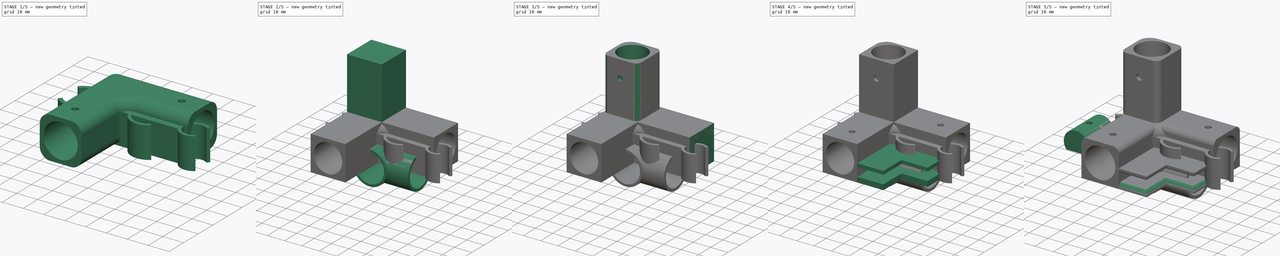
[diagram: build sequence overview — one tinted view per stage of 5, left to right]
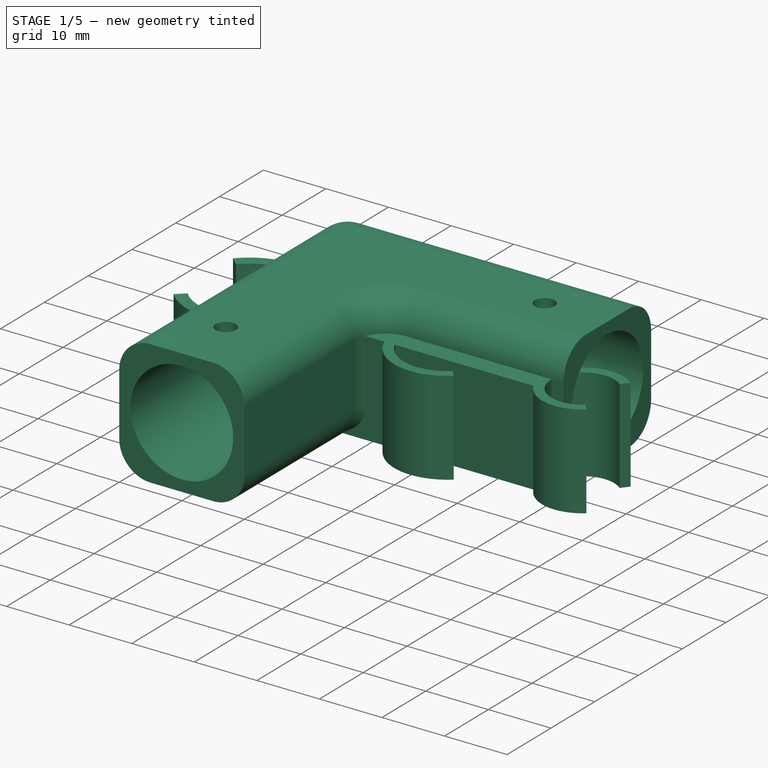
[diagram: stage 1 of 5 — iso view after this stage's code; geometry added in this stage tinted green]
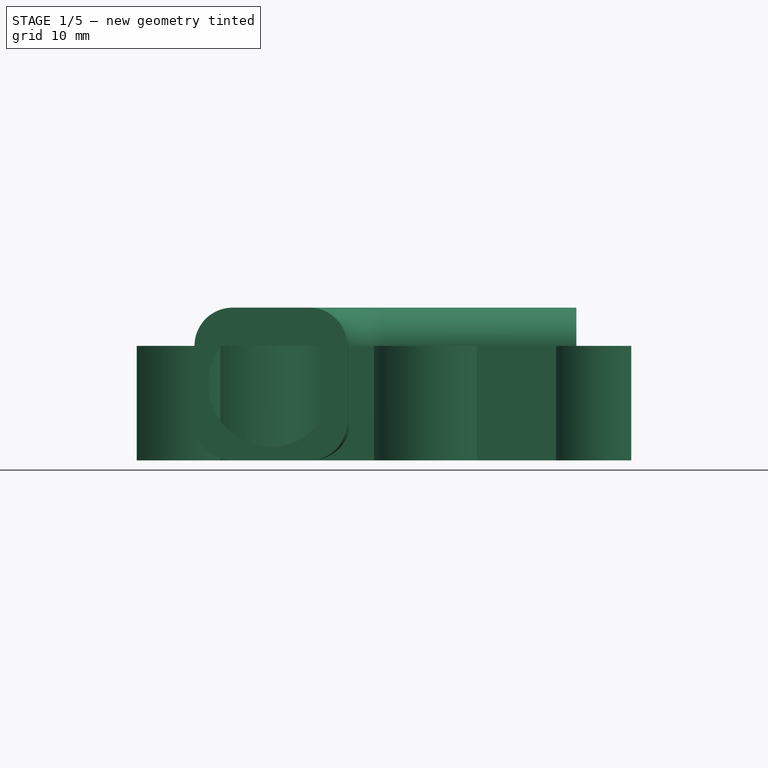
[diagram: stage 1 of 5 — front view after this stage's code; geometry added in this stage tinted green]
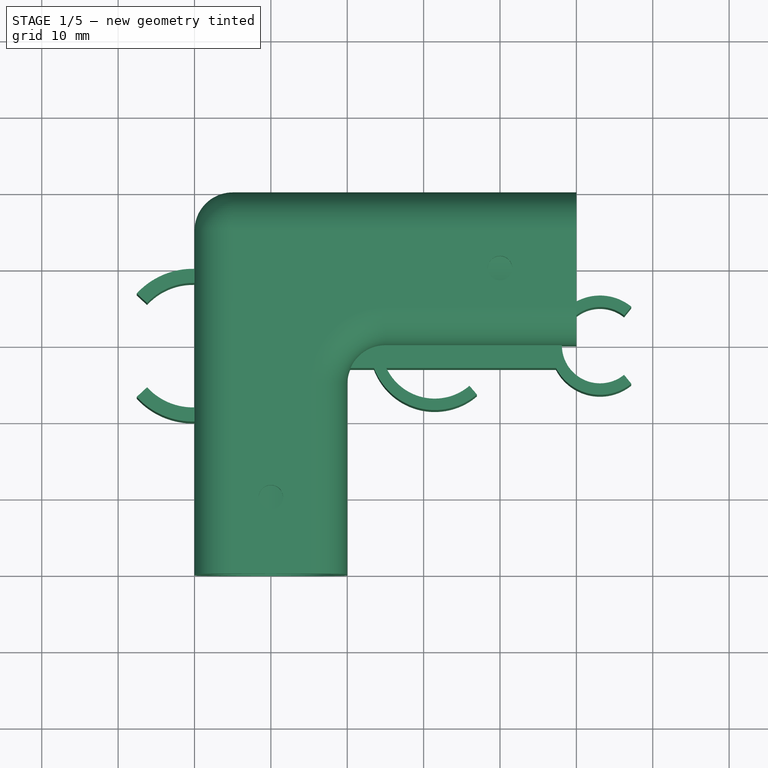
[diagram: stage 1 of 5 — top view after this stage's code; geometry added in this stage tinted green]
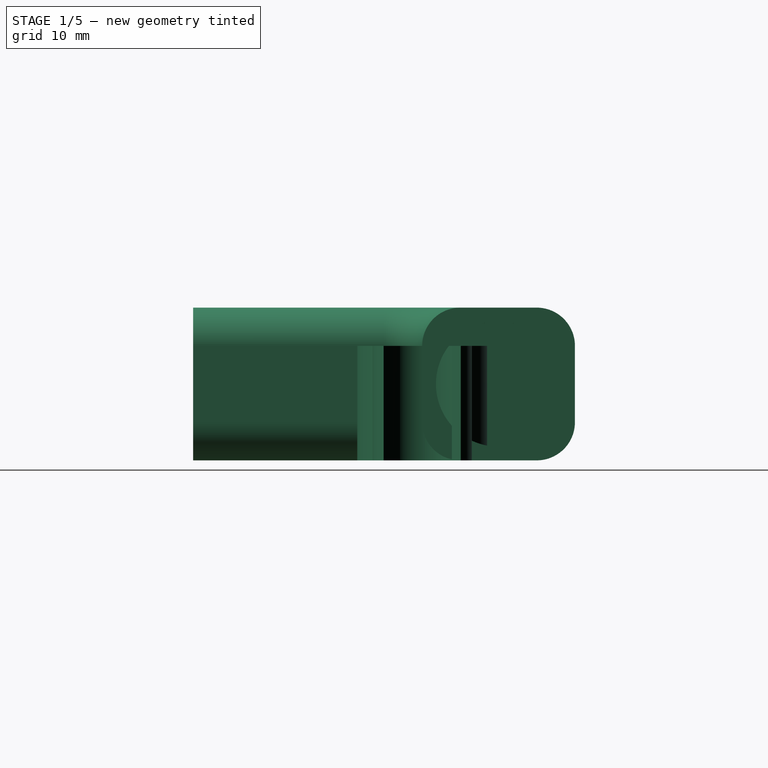
[diagram: stage 1 of 5 — right view after this stage's code; geometry added in this stage tinted green]
FCSTD DOCUMENT  (FreeCAD 0.21R33694 (Git))
Label: SprayBoxOutdoor
License: All rights reserved
LicenseURL: http://en.wikipedia.org/wiki/All_rights_reserved
objects: Sketcher::SketchObject×31, PartDesign::Pocket×18, PartDesign::Pad×12, PartDesign::Body×7, PartDesign::Fillet×7, Spreadsheet::Sheet×3
note: 112 computed .brp shape members not serialized (recipe doc carries the construction recipe); baked Part::Feature solids carry a one-line shape summary decoded from their .brp

FEATURE [PartDesign::Body] Body003  label="Körper"
  Group = -> [Sketch022,Pad007,Sketch023,Pad008,Sketch024,Pocket013,Sketch025,Pocket014]
  Origin = -> Origin003
  Tip = -> Pocket014
FEATURE [Sketcher::SketchObject] Sketch026
  FullyConstrained = true
  MapMode = 2
  sketch-geometry (6):
    g0: LineSegment StartX=-20 StartY=20 StartZ=0 EndX=-20 EndY=-30 EndZ=0
    g1: LineSegment StartX=-20 StartY=-30 StartZ=0 EndX=0 EndY=-30 EndZ=0
    g2: LineSegment StartX=0 StartY=-30 StartZ=0 EndX=0 EndY=0 EndZ=0
    g3: LineSegment StartX=0 StartY=0 StartZ=0 EndX=30 EndY=0 EndZ=0
    g4: LineSegment StartX=30 StartY=0 StartZ=0 EndX=30 EndY=20 EndZ=0
    g5: LineSegment StartX=-20 StartY=20 StartZ=0 EndX=30 EndY=20 EndZ=0
  constraints (17):
    c: Vertical(g0)
    c: Coincident(g0,g1)
    c: PointOnObject(g1,g-2)
    c: Horizontal(g1)
    c: Coincident(g1,g2)
    c: Coincident(g2,g-1)
    c: Coincident(g2,g3)
    c: Horizontal(g3)
    c: Coincident(g3,g4)
    c: Vertical(g4)
    c: DistanceY(g4,g4) = 20
    c: Coincident(g5,g0)
    c: Coincident(g5,g4)
    c: Horizontal(g5)
    c: Equal(g5,g0)
    c: DistanceX(g5,g5) = 50
    c: Equal(g1,g4)
FEATURE [PartDesign::Pad] Pad009
  Direction = (0,0,1)
  Length = 20
  Length2 = 10
  Profile = -> Sketch026
  ReferenceAxis = -> Sketch026 [N_Axis]
  Type = 0
FEATURE [Sketcher::SketchObject] Sketch027
  AttachmentOffset = pos=(0,0,30) rot=(0,0,1;0rad)
  FullyConstrained = true
  MapMode = 5
  Placement = pos=(0,-30,-6.7e-15) rot=(1,0,0;1.5708rad)
  Support = -> [XZ_Plane004]
  expr: Constraints[2] = Spreadsheet002.rohr_aussen
  sketch-geometry (1):
    g0: Circle CenterX=-10 CenterY=10 CenterZ=0 NormalX=0 NormalY=0 NormalZ=1 AngleXU=0 Radius=8.2
  constraints (3):
    c: DistanceX(g0,g-1) = 10
    c: DistanceY(g-1,g0) = 10
    c: Diameter(g0) = 16.4
FEATURE [PartDesign::Pocket] Pocket015
  BaseFeature = -> Pad009
  Direction = (0,1,2e-16)
  Length = 30
  Length2 = 5
  Profile = -> Sketch027
  ReferenceAxis = -> Sketch027 [N_Axis]
  Type = 0
FEATURE [Sketcher::SketchObject] Sketch028
  AttachmentOffset = pos=(0,0,30) rot=(0,0,1;0rad)
  FullyConstrained = true
  MapMode = 5
  Placement = pos=(30,-6.7e-15,6.7e-15) rot=(0.57735,0.57735,0.57735;2.0944rad)
  Support = -> [YZ_Plane004]
  expr: Constraints[0] = Spreadsheet002.rohr_aussen
  sketch-geometry (1):
    g0: Circle CenterX=10 CenterY=10 CenterZ=0 NormalX=0 NormalY=0 NormalZ=1 AngleXU=0 Radius=8.2
  constraints (3):
    c: Diameter(g0) = 16.4
    c: DistanceY(g-1,g0) = 10
    c: DistanceX(g-1,g0) = 10
FEATURE [PartDesign::Pocket] Pocket016
  BaseFeature = -> Pocket015
  Direction = (-1,2e-16,-3e-16)
  Length = 30
  Length2 = 5
  Profile = -> Sketch028
  ReferenceAxis = -> Sketch028 [N_Axis]
  Type = 0
FEATURE [Spreadsheet::Sheet] Spreadsheet002
  cells = A1='RohrAußen; B1(rohr_aussen)=16.4; A2='Bohrung; B2(bohrung)=3.2; A3='RohrInnen; B3(rohr_innen)=12.8; A4='Mutter; B4(mutter)=5.5
FEATURE [Sketcher::SketchObject] Sketch031
  AttachmentOffset = pos=(0,0,20) rot=(0,0,1;0rad)
  FullyConstrained = true
  MapMode = 5
  Placement = pos=(0,0,20) rot=(0,0,1;0rad)
  Support = -> [XY_Plane004]
  expr: Constraints[0] = Spreadsheet002.bohrung
  expr: Constraints[1] = Spreadsheet002.bohrung
  sketch-geometry (2):
    g0: Circle CenterX=20 CenterY=10 CenterZ=0 NormalX=0 NormalY=0 NormalZ=1 AngleXU=0 Radius=1.6
    g1: Circle CenterX=-10 CenterY=-20 CenterZ=0 NormalX=0 NormalY=0 NormalZ=1 AngleXU=0 Radius=1.6
  constraints (6):
    c: Diameter(g1) = 3.2
    c: Diameter(g0) = 3.2
    c: DistanceY(g1,g-1) = 20
    c: DistanceX(g1,g-1) = 10
    c: DistanceY(g-1,g0) = 10
    c: DistanceX(g-1,g0) = 20
FEATURE [PartDesign::Pocket] Pocket018
  BaseFeature = -> Pocket016
  Direction = (0,0,-1)
  Length = 5
  Length2 = 5
  Profile = -> Sketch031
  ReferenceAxis = -> Sketch031 [N_Axis]
  Type = 0
FEATURE [PartDesign::Fillet] Fillet006
  Base = -> Pocket018 [Edge17,Edge16,Edge4,Edge7,Edge6,Edge1,Edge3,Edge12,Edge13,Edge22]
  BaseFeature = -> Pocket018
  Radius = 5
  SupportTransform = false
  UseAllEdges = false
FEATURE [PartDesign::Body] Body004  label="Corner top001"
  Group = -> [Sketch026,Pad009,Sketch027,Pocket015,Sketch028,Pocket016,Sketch031,Pocket018,Fillet006]
  Origin = -> Origin004
  Tip = -> Fillet006
FEATURE [Sketcher::SketchObject] Sketch032
  FullyConstrained = true
  MapMode = 5
  Support = -> [XY_Plane005]
  sketch-geometry (13):
    g0: ArcOfCircle CenterX=11.453 CenterY=-1e-16 CenterZ=0 NormalX=0 NormalY=0 NormalZ=1 AngleXU=0 Radius=7 StartAngle=0.863773 EndAngle=5.41941
    g1: LineSegment StartX=16 StartY=5.32209 StartZ=0 EndX=16.9744 EndY=6.46254 EndZ=0
    g2: ArcOfCircle CenterX=11.453 CenterY=-1e-16 CenterZ=0 NormalX=0 NormalY=0 NormalZ=1 AngleXU=0 Radius=8.5 StartAngle=0.863773 EndAngle=2.78088
    g3: ArcOfCircle CenterX=11.453 CenterY=-1e-16 CenterZ=0 NormalX=0 NormalY=0 NormalZ=1 AngleXU=0 Radius=8.5 StartAngle=3.50231 EndAngle=5.41941
    g4: LineSegment StartX=16 StartY=-5.32209 StartZ=0 EndX=16.9744 EndY=-6.46254 EndZ=0
    g5: LineSegment StartX=3.5 StartY=-3 StartZ=0 EndX=-3.5 EndY=-3 EndZ=0
    g6: LineSegment StartX=3.5 StartY=3 StartZ=0 EndX=-3.5 EndY=3 EndZ=0
    g7: GeomPoint X=-13.0394 Y=-7.9e-15 Z=0
    g8: ArcOfCircle CenterX=-13.0394 CenterY=-7.9e-15 CenterZ=0 NormalX=0 NormalY=0 NormalZ=1 AngleXU=0 Radius=10 StartAngle=0.304693 EndAngle=2.28862
    g9: ArcOfCircle CenterX=-13.0394 CenterY=-7.9e-15 CenterZ=0 NormalX=0 NormalY=0 NormalZ=1 AngleXU=0 Radius=10 StartAngle=3.99457 EndAngle=5.97849
    g10: LineSegment StartX=-19.6168 StartY=7.53242 StartZ=0 EndX=-18.4 EndY=6.13892 EndZ=0
    g11: LineSegment StartX=-19.6168 StartY=-7.53242 StartZ=0 EndX=-18.4 EndY=-6.13892 EndZ=0
    g12: ArcOfCircle CenterX=-13.0394 CenterY=-7.9e-15 CenterZ=0 NormalX=0 NormalY=0 NormalZ=1 AngleXU=0 Radius=8.15 StartAngle=3.99457 EndAngle=8.5718
  constraints (35):
    c: Diameter(g0) = 14
    c: Coincident(g1,g0)
    c: Coincident(g2,g0)
    c: Coincident(g2,g1)
    c: Diameter(g2) = 17
    c: Perpendicular(g0,g1)
    c: DistanceX(g-1,g0) = 16
    c: Symmetric(g4,g0,g-1)
    c: Coincident(g3,g0)
    c: Coincident(g4,g3)
    c: Symmetric(g1,g3,g-1)
    c: Coincident(g5,g3)
    c: Horizontal(g5)
    c: Coincident(g6,g2)
    c: Horizontal(g6)
    c: Coincident(g4,g0)
    c: DistanceX(g6,g6) = 7
    c: Equal(g5,g6)
    c: Coincident(g8,g7)
    c: Coincident(g8,g6)
    c: Coincident(g9,g8)
    c: Coincident(g9,g5)
    c: Symmetric(g8,g9,g-1)
    c: Coincident(g10,g8)
    c: Coincident(g11,g9)
    c: Coincident(g12,g8)
    c: Coincident(g12,g10)
    c: Coincident(g12,g11)
    c: Symmetric(g10,g11,g-1)
    c: Perpendicular(g8,g10)
    c: DistanceY(g-1,g2) = 3
    c: Diameter(g12) = 16.3
    c: Diameter(g8) = 20
    c: DistanceX(g-1,g3) = 3.5
    c: DistanceX(g10,g-1) = 18.4
FEATURE [PartDesign::Pad] Pad010
  Direction = (0,0,1)
  Length = 15
  Length2 = 10
  Profile = -> Sketch032
  ReferenceAxis = -> Sketch032 [N_Axis]
  Type = 0
FEATURE [PartDesign::Body] Body005  label="Klammer1-Wäscheständer"
  Group = -> [Sketch032,Pad010]
  Origin = -> Origin005
  Tip = -> Pad010
FEATURE [Sketcher::SketchObject] Sketch033
  FullyConstrained = true
  MapMode = 5
  Support = -> [XY_Plane006]
  sketch-geometry (13):
    g0: ArcOfCircle CenterX=33.0963 CenterY=-1e-16 CenterZ=0 NormalX=0 NormalY=0 NormalZ=1 AngleXU=0 Radius=5 StartAngle=0.889243 EndAngle=5.39394
    g1: LineSegment StartX=36.2463 StartY=3.88298 StartZ=0 EndX=37.1913 EndY=5.04787 EndZ=0
    g2: ArcOfCircle CenterX=33.0963 CenterY=-1e-16 CenterZ=0 NormalX=0 NormalY=0 NormalZ=1 AngleXU=0 Radius=6.5 StartAngle=0.889243 EndAngle=2.66186
    g3: ArcOfCircle CenterX=33.0963 CenterY=-1e-16 CenterZ=0 NormalX=0 NormalY=0 NormalZ=1 AngleXU=0 Radius=6.5 StartAngle=3.62132 EndAngle=5.39394
    g4: LineSegment StartX=36.2463 StartY=-3.88298 StartZ=0 EndX=37.1913 EndY=-5.04787 EndZ=0
    g5: LineSegment StartX=27.33 StartY=-3 StartZ=0 EndX=-10.67 EndY=-3 EndZ=0
    g6: LineSegment StartX=27.33 StartY=3 StartZ=0 EndX=-10.67 EndY=3 EndZ=0
    g7: GeomPoint X=-20.2094 Y=-6e-16 Z=0
    g8: ArcOfCircle CenterX=-20.2094 CenterY=-6e-16 CenterZ=0 NormalX=0 NormalY=0 NormalZ=1 AngleXU=0 Radius=10 StartAngle=0.304693 EndAngle=2.39823
    g9: ArcOfCircle CenterX=-20.2094 CenterY=-6e-16 CenterZ=0 NormalX=0 NormalY=0 NormalZ=1 AngleXU=0 Radius=10 StartAngle=3.88496 EndAngle=5.97849
    g10: LineSegment StartX=-27.5714 StartY=6.76768 StartZ=0 EndX=-26.2094 EndY=5.51566 EndZ=0
    g11: LineSegment StartX=-27.5714 StartY=-6.76768 StartZ=0 EndX=-26.2094 EndY=-5.51566 EndZ=0
    g12: ArcOfCircle CenterX=-20.2094 CenterY=-6e-16 CenterZ=0 NormalX=0 NormalY=0 NormalZ=1 AngleXU=0 Radius=8.15 StartAngle=3.88496 EndAngle=8.68141
  constraints (35):
    c: Diameter(g0) = 10
    c: Coincident(g1,g0)
    c: Coincident(g2,g0)
    c: Coincident(g2,g1)
    c: Diameter(g2) = 13
    c: Perpendicular(g0,g1)
    c: Symmetric(g4,g0,g-1)
    c: Coincident(g3,g0)
    c: Coincident(g4,g3)
    c: Symmetric(g1,g3,g-1)
    c: Coincident(g5,g3)
    c: Horizontal(g5)
    c: Coincident(g6,g2)
    c: Horizontal(g6)
    c: Coincident(g4,g0)
    c: DistanceX(g6,g6) = 38
    c: Coincident(g8,g7)
    c: Coincident(g8,g6)
    c: Coincident(g9,g8)
    c: Coincident(g9,g5)
    c: Symmetric(g8,g9,g-1)
    c: Coincident(g10,g8)
    c: Coincident(g11,g9)
    c: Coincident(g12,g8)
    c: Coincident(g12,g10)
    c: Coincident(g12,g11)
    c: Symmetric(g10,g11,g-1)
    c: Perpendicular(g8,g10)
    c: DistanceY(g-1,g2) = 3
    c: Diameter(g12) = 16.3
    c: Diameter(g8) = 20
    c: DistanceX(g10,g8) = 6
    c: DistanceX(g-1,g2) = 27.33
    c: DistanceX(g0,g0) = 3.15
    c: DistanceY(g5,g6) = 6
FEATURE [PartDesign::Pad] Pad011
  Direction = (0,0,1)
  Length = 15
  Length2 = 10
  Profile = -> Sketch033
  ReferenceAxis = -> Sketch033 [N_Axis]
  Type = 0
FEATURE [PartDesign::Body] Body006  label="Klammer2-Wäscheständer"
  Group = -> [Sketch033,Pad011]
  Origin = -> Origin006
  Tip = -> Pad011
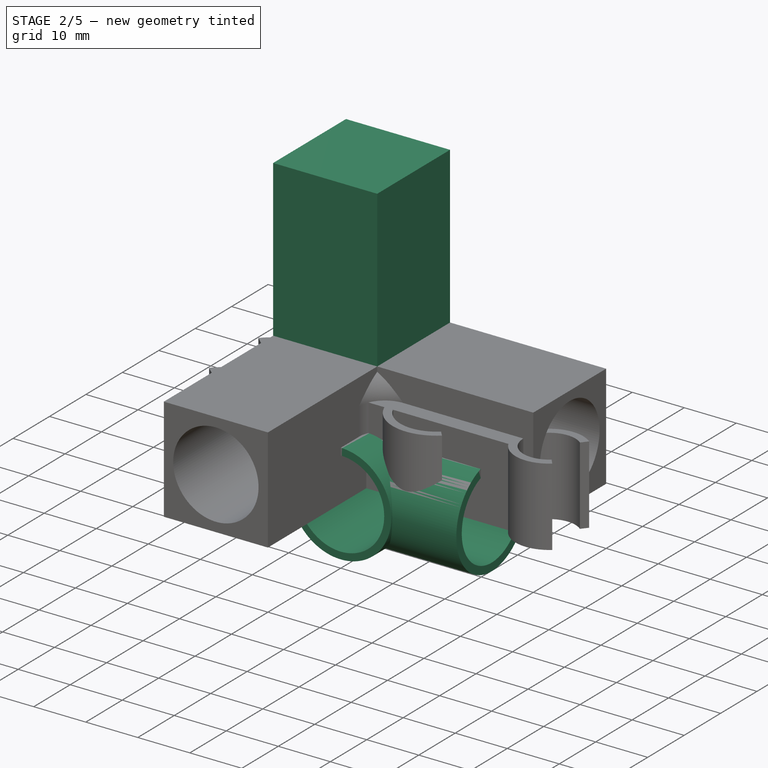
[diagram: stage 2 of 5 — iso view after this stage's code; geometry added in this stage tinted green]
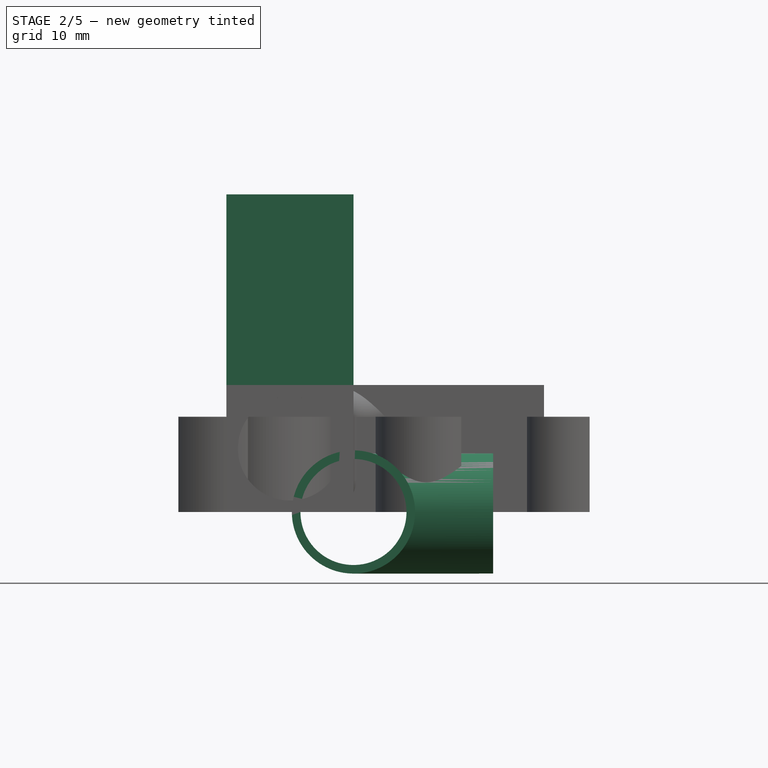
[diagram: stage 2 of 5 — front view after this stage's code; geometry added in this stage tinted green]
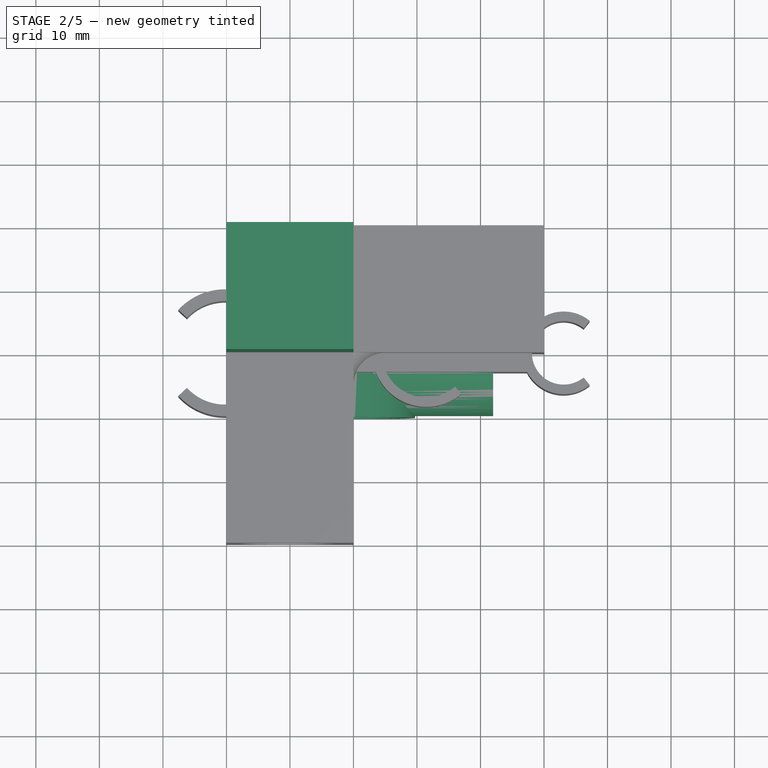
[diagram: stage 2 of 5 — top view after this stage's code; geometry added in this stage tinted green]
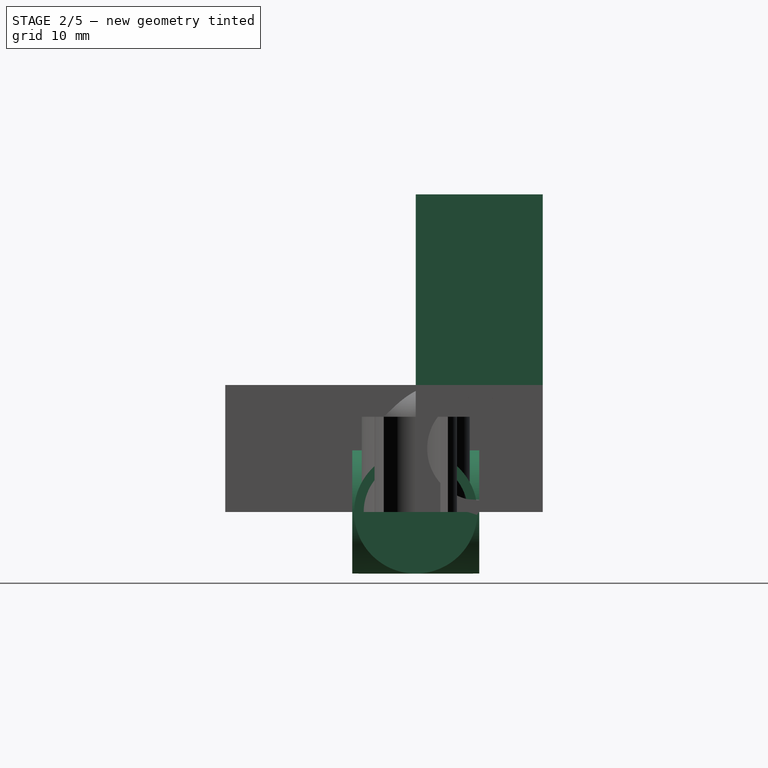
[diagram: stage 2 of 5 — right view after this stage's code; geometry added in this stage tinted green]
FEATURE [PartDesign::Body] Body  label="Corner bottom"
  Group = -> [Sketch,Pad,Sketch001,Pocket,Sketch002,Pocket001,Sketch003,Pad001,Sketch004,Pocket002,Sketch005,Pad002,Sketch006,Pocket003,Sketch007,Pocket004,Sketch008,Pad003,Fillet,Fillet001,Fillet002,Fillet003]
  Origin = -> Origin001
  Tip = -> Fillet003
FEATURE [Sketcher::SketchObject] Sketch014
  FullyConstrained = true
  MapMode = 2
  sketch-geometry (6):
    g0: LineSegment StartX=-20 StartY=20 StartZ=0 EndX=-20 EndY=-30 EndZ=0
    g1: LineSegment StartX=-20 StartY=-30 StartZ=0 EndX=0 EndY=-30 EndZ=0
    g2: LineSegment StartX=0 StartY=-30 StartZ=0 EndX=0 EndY=0 EndZ=0
    g3: LineSegment StartX=0 StartY=0 StartZ=0 EndX=30 EndY=0 EndZ=0
    g4: LineSegment StartX=30 StartY=0 StartZ=0 EndX=30 EndY=20 EndZ=0
    g5: LineSegment StartX=-20 StartY=20 StartZ=0 EndX=30 EndY=20 EndZ=0
  constraints (17):
    c: Vertical(g0)
    c: Coincident(g0,g1)
    c: PointOnObject(g1,g-2)
    c: Horizontal(g1)
    c: Coincident(g1,g2)
    c: Coincident(g2,g-1)
    c: Coincident(g2,g3)
    c: Horizontal(g3)
    c: Coincident(g3,g4)
    c: Vertical(g4)
    c: DistanceY(g4,g4) = 20
    c: Coincident(g5,g0)
    c: Coincident(g5,g4)
    c: Horizontal(g5)
    c: Equal(g5,g0)
    c: DistanceX(g5,g5) = 50
    c: Equal(g1,g4)
FEATURE [PartDesign::Pad] Pad005
  Direction = (0,0,1)
  Length = 20
  Length2 = 10
  Profile = -> Sketch014
  ReferenceAxis = -> Sketch014 [N_Axis]
  Type = 0
FEATURE [Sketcher::SketchObject] Sketch015
  AttachmentOffset = pos=(0,0,30) rot=(0,0,1;0rad)
  FullyConstrained = true
  MapMode = 5
  Placement = pos=(0,-30,-6.7e-15) rot=(1,0,0;1.5708rad)
  Support = -> [XZ_Plane002]
  expr: Constraints[2] = Spreadsheet001.rohr_aussen
  sketch-geometry (1):
    g0: Circle CenterX=-10 CenterY=10 CenterZ=0 NormalX=0 NormalY=0 NormalZ=1 AngleXU=0 Radius=8.2
  constraints (3):
    c: DistanceX(g0,g-1) = 10
    c: DistanceY(g-1,g0) = 10
    c: Diameter(g0) = 16.4
FEATURE [PartDesign::Pocket] Pocket008
  BaseFeature = -> Pad005
  Direction = (0,1,2e-16)
  Length = 30
  Length2 = 5
  Profile = -> Sketch015
  ReferenceAxis = -> Sketch015 [N_Axis]
  Type = 0
FEATURE [Sketcher::SketchObject] Sketch016
  AttachmentOffset = pos=(0,0,30) rot=(0,0,1;0rad)
  FullyConstrained = true
  MapMode = 5
  Placement = pos=(30,-6.7e-15,6.7e-15) rot=(0.57735,0.57735,0.57735;2.0944rad)
  Support = -> [YZ_Plane002]
  expr: Constraints[0] = Spreadsheet001.rohr_aussen
  sketch-geometry (1):
    g0: Circle CenterX=10 CenterY=10 CenterZ=0 NormalX=0 NormalY=0 NormalZ=1 AngleXU=0 Radius=8.2
  constraints (3):
    c: Diameter(g0) = 16.4
    c: DistanceY(g-1,g0) = 10
    c: DistanceX(g-1,g0) = 10
FEATURE [PartDesign::Pocket] Pocket009
  BaseFeature = -> Pocket008
  Direction = (-1,2e-16,-3e-16)
  Length = 30
  Length2 = 5
  Profile = -> Sketch016
  ReferenceAxis = -> Sketch016 [N_Axis]
  Type = 0
FEATURE [Sketcher::SketchObject] Sketch017
  AttachmentOffset = pos=(0,0,20) rot=(0,0,1;0rad)
  FullyConstrained = true
  MapMode = 5
  Placement = pos=(0,0,20) rot=(0,0,1;0rad)
  Support = -> [XY_Plane002]
  sketch-geometry (4):
    g0: LineSegment StartX=-20 StartY=20 StartZ=0 EndX=0 EndY=20 EndZ=0
    g1: LineSegment StartX=0 StartY=20 StartZ=0 EndX=0 EndY=0 EndZ=0
    g2: LineSegment StartX=0 StartY=0 StartZ=0 EndX=-20 EndY=0 EndZ=0
    g3: LineSegment StartX=-20 StartY=0 StartZ=0 EndX=-20 EndY=20 EndZ=0
  constraints (11):
    c: Coincident(g0,g1)
    c: Coincident(g1,g2)
    c: Coincident(g2,g3)
    c: Coincident(g3,g0)
    c: Horizontal(g0)
    c: Horizontal(g2)
    c: Vertical(g1)
    c: Vertical(g3)
    c: Coincident(g1,g-1)
    c: DistanceX(g0,g0) = 20
    c: DistanceY(g3,g3) = 20
FEATURE [PartDesign::Pad] Pad006
  BaseFeature = -> Pocket009
  Direction = (0,0,1)
  Length = 30
  Length2 = 10
  Profile = -> Sketch017
  ReferenceAxis = -> Sketch017 [N_Axis]
  Type = 0
FEATURE [PartDesign::Body] Body002  label="Corner top"
  Group = -> [Sketch014,Pad005,Sketch015,Pocket008,Sketch016,Pocket009,Sketch017,Pad006,Sketch018,Pocket010,Sketch020,Pocket011,Sketch021,Pocket012,Fillet004,Fillet005]
  Origin = -> Origin002
  Tip = -> Fillet005
FEATURE [Sketcher::SketchObject] Sketch022
  FullyConstrained = true
  MapMode = 5
  Placement = pos=(0,0,0) rot=(1,0,0;1.5708rad)
  Support = -> [XZ_Plane003]
  expr: Constraints[1] = Spreadsheet.rohr_aussen + 3
  sketch-geometry (1):
    g0: Circle CenterX=0 CenterY=0 CenterZ=0 NormalX=0 NormalY=0 NormalZ=1 AngleXU=0 Radius=9.7
  constraints (2):
    c: Coincident(g0,g-1)
    c: Diameter(g0) = 19.4
FEATURE [PartDesign::Pad] Pad007
  Direction = (0,-1,2e-16)
  Length = 20
  Length2 = 10
  Midplane = true
  Placement = pos=(0,0,0) rot=(1,0,0;1.5708rad)
  Profile = -> Sketch022
  ReferenceAxis = -> Sketch022 [N_Axis]
  Type = 0
FEATURE [Sketcher::SketchObject] Sketch023
  FullyConstrained = true
  MapMode = 5
  Placement = pos=(0,0,0) rot=(0.57735,0.57735,0.57735;2.0944rad)
  Support = -> [YZ_Plane003]
  expr: Constraints[1] = Spreadsheet.rohr_aussen + 3
  sketch-geometry (1):
    g0: Circle CenterX=0 CenterY=0 CenterZ=0 NormalX=0 NormalY=0 NormalZ=1 AngleXU=0 Radius=9.7
  constraints (2):
    c: Coincident(g0,g-1)
    c: Diameter(g0) = 19.4
FEATURE [PartDesign::Pad] Pad008
  BaseFeature = -> Pad007
  Direction = (1,-2e-16,3e-16)
  Length = 22
  Length2 = 10
  Placement = pos=(0,0,0) rot=(1,0,0;1.5708rad)
  Profile = -> Sketch023
  ReferenceAxis = -> Sketch023 [N_Axis]
  Type = 0
FEATURE [Sketcher::SketchObject] Sketch024
  AttachmentOffset = pos=(0,0,10) rot=(0,0,1;0rad)
  FullyConstrained = true
  MapMode = 5
  Placement = pos=(0,-10,-2.2e-15) rot=(1,0,0;1.5708rad)
  Support = -> [XZ_Plane003]
  expr: Constraints[1] = Spreadsheet.rohr_aussen + 0.3
  sketch-geometry (1):
    g0: Circle CenterX=0 CenterY=0 CenterZ=0 NormalX=0 NormalY=0 NormalZ=1 AngleXU=0 Radius=8.35
  constraints (2):
    c: Coincident(g0,g-1)
    c: Diameter(g0) = 16.7
FEATURE [PartDesign::Pocket] Pocket013
  BaseFeature = -> Pad008
  Direction = (0,1,-2e-16)
  Length = 23
  Length2 = 5
  Placement = pos=(0,0,0) rot=(1,0,0;1.5708rad)
  Profile = -> Sketch024
  ReferenceAxis = -> Sketch024 [N_Axis]
  Type = 0
FEATURE [Sketcher::SketchObject] Sketch025
  AttachmentOffset = pos=(0,0,22) rot=(0,0,1;0rad)
  FullyConstrained = true
  MapMode = 5
  Placement = pos=(22,-4.9e-15,4.9e-15) rot=(0.57735,0.57735,0.57735;2.0944rad)
  Support = -> [YZ_Plane003]
  expr: Constraints[1] = Spreadsheet.rohr_aussen
  sketch-geometry (1):
    g0: Circle CenterX=0 CenterY=0 CenterZ=0 NormalX=0 NormalY=0 NormalZ=1 AngleXU=0 Radius=8.2
  constraints (2):
    c: Coincident(g0,g-1)
    c: Diameter(g0) = 16.4
FEATURE [PartDesign::Pocket] Pocket014
  BaseFeature = -> Pocket013
  Direction = (-1,2e-16,-3e-16)
  Length = 12
  Length2 = 5
  Placement = pos=(0,0,0) rot=(1,0,0;1.5708rad)
  Profile = -> Sketch025
  ReferenceAxis = -> Sketch025 [N_Axis]
  Type = 0
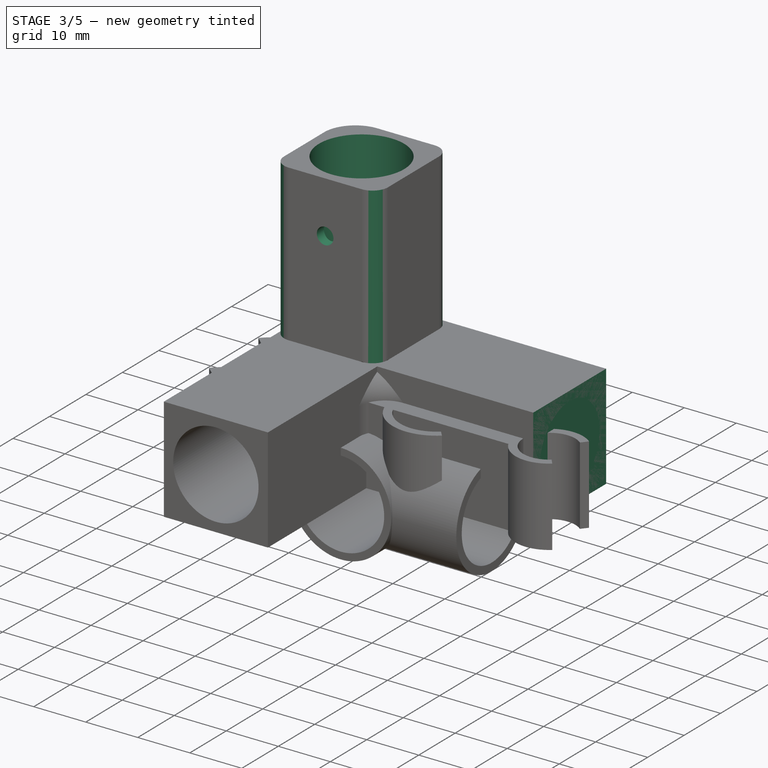
[diagram: stage 3 of 5 — iso view after this stage's code; geometry added in this stage tinted green]
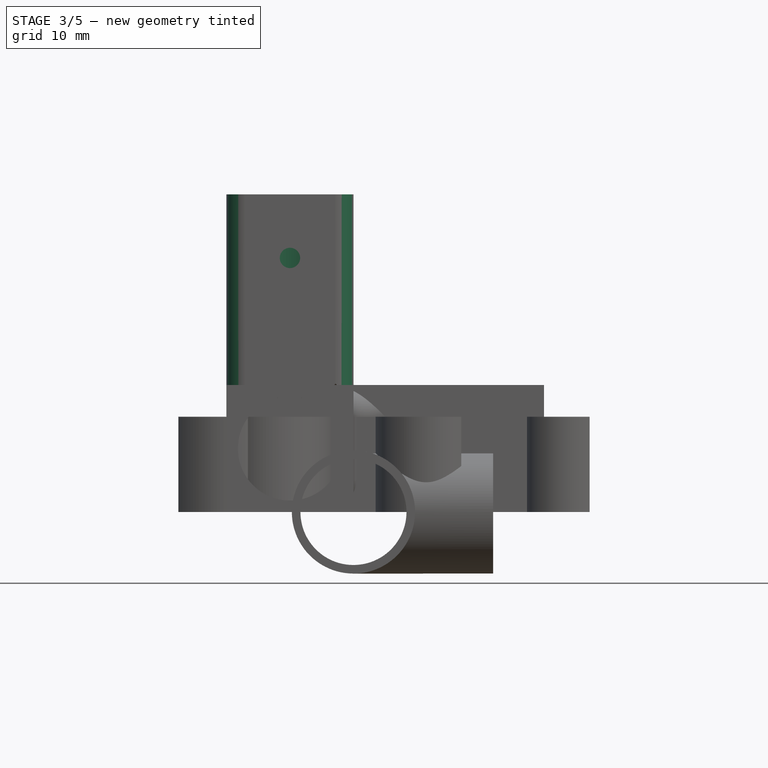
[diagram: stage 3 of 5 — front view after this stage's code; geometry added in this stage tinted green]
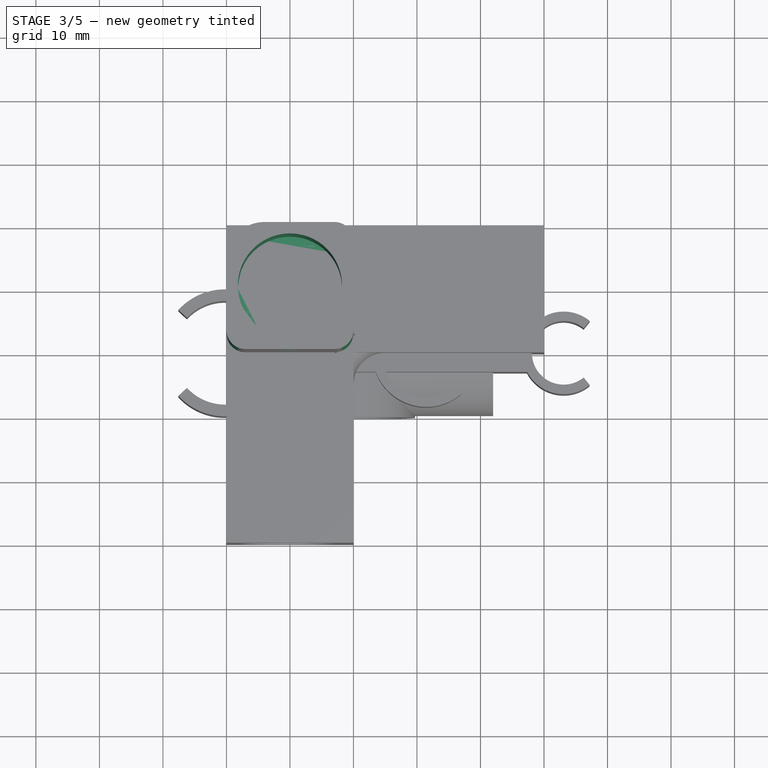
[diagram: stage 3 of 5 — top view after this stage's code; geometry added in this stage tinted green]
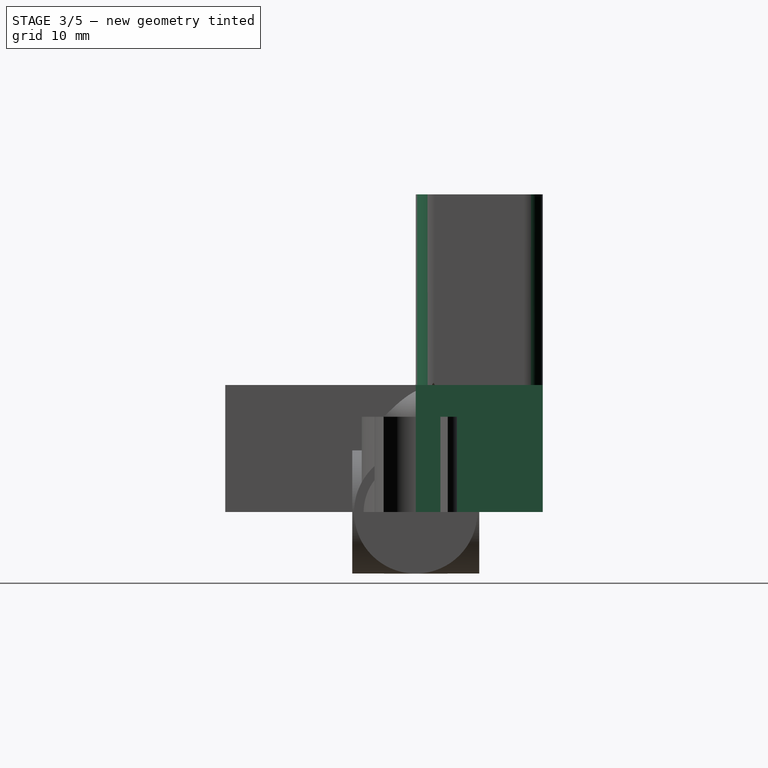
[diagram: stage 3 of 5 — right view after this stage's code; geometry added in this stage tinted green]
FEATURE [Sketcher::SketchObject] Sketch
  FullyConstrained = true
  MapMode = 2
  sketch-geometry (6):
    g0: LineSegment StartX=-20 StartY=20 StartZ=0 EndX=-20 EndY=-30 EndZ=0
    g1: LineSegment StartX=-20 StartY=-30 StartZ=0 EndX=0 EndY=-30 EndZ=0
    g2: LineSegment StartX=0 StartY=-30 StartZ=0 EndX=0 EndY=0 EndZ=0
    g3: LineSegment StartX=0 StartY=0 StartZ=0 EndX=30 EndY=0 EndZ=0
    g4: LineSegment StartX=30 StartY=0 StartZ=0 EndX=30 EndY=20 EndZ=0
    g5: LineSegment StartX=-20 StartY=20 StartZ=0 EndX=30 EndY=20 EndZ=0
  constraints (17):
    c: Vertical(g0)
    c: Coincident(g0,g1)
    c: PointOnObject(g1,g-2)
    c: Horizontal(g1)
    c: Coincident(g1,g2)
    c: Coincident(g2,g-1)
    c: Coincident(g2,g3)
    c: Horizontal(g3)
    c: Coincident(g3,g4)
    c: Vertical(g4)
    c: DistanceY(g4,g4) = 20
    c: Coincident(g5,g0)
    c: Coincident(g5,g4)
    c: Horizontal(g5)
    c: Equal(g5,g0)
    c: DistanceX(g5,g5) = 50
    c: Equal(g1,g4)
FEATURE [PartDesign::Pad] Pad
  Direction = (0,0,1)
  Length = 20
  Length2 = 10
  Profile = -> Sketch
  ReferenceAxis = -> Sketch [N_Axis]
  Type = 0
FEATURE [Sketcher::SketchObject] Sketch001
  AttachmentOffset = pos=(0,0,30) rot=(0,0,1;0rad)
  FullyConstrained = true
  MapMode = 5
  Placement = pos=(0,-30,-6.7e-15) rot=(1,0,0;1.5708rad)
  Support = -> [XZ_Plane001]
  expr: Constraints[2] = Spreadsheet.rohr_aussen
  sketch-geometry (1):
    g0: Circle CenterX=-10 CenterY=10 CenterZ=0 NormalX=0 NormalY=0 NormalZ=1 AngleXU=0 Radius=8.2
  constraints (3):
    c: DistanceX(g0,g-1) = 10
    c: DistanceY(g-1,g0) = 10
    c: Diameter(g0) = 16.4
FEATURE [PartDesign::Pocket] Pocket
  BaseFeature = -> Pad
  Direction = (0,1,2e-16)
  Length = 30
  Length2 = 5
  Profile = -> Sketch001
  ReferenceAxis = -> Sketch001 [N_Axis]
  Type = 0
FEATURE [Sketcher::SketchObject] Sketch018
  AttachmentOffset = pos=(0,0,50) rot=(0,0,1;0rad)
  FullyConstrained = true
  MapMode = 5
  Placement = pos=(0,0,50) rot=(0,0,1;0rad)
  Support = -> [XY_Plane002]
  expr: Constraints[0] = Spreadsheet001.rohr_aussen
  sketch-geometry (1):
    g0: Circle CenterX=-10 CenterY=10 CenterZ=0 NormalX=0 NormalY=0 NormalZ=1 AngleXU=0 Radius=8.2
  constraints (3):
    c: Diameter(g0) = 16.4
    c: DistanceX(g0,g-1) = 10
    c: DistanceY(g-1,g0) = 10
FEATURE [PartDesign::Pocket] Pocket010
  BaseFeature = -> Pad006
  Direction = (0,0,-1)
  Length = 30
  Length2 = 5
  Profile = -> Sketch018
  ReferenceAxis = -> Sketch018 [N_Axis]
  Type = 0
FEATURE [Sketcher::SketchObject] Sketch020
  AttachmentOffset = pos=(0,0,20) rot=(0,0,1;0rad)
  FullyConstrained = true
  MapMode = 5
  Placement = pos=(0,0,20) rot=(0,0,1;0rad)
  Support = -> [XY_Plane002]
  expr: Constraints[0] = Spreadsheet001.bohrung
  expr: Constraints[1] = Spreadsheet001.bohrung
  sketch-geometry (2):
    g0: Circle CenterX=20 CenterY=10 CenterZ=0 NormalX=0 NormalY=0 NormalZ=1 AngleXU=0 Radius=1.6
    g1: Circle CenterX=-10 CenterY=-20 CenterZ=0 NormalX=0 NormalY=0 NormalZ=1 AngleXU=0 Radius=1.6
  constraints (6):
    c: Diameter(g1) = 3.2
    c: Diameter(g0) = 3.2
    c: DistanceY(g1,g-1) = 20
    c: DistanceX(g1,g-1) = 10
    c: DistanceY(g-1,g0) = 10
    c: DistanceX(g-1,g0) = 20
FEATURE [PartDesign::Pocket] Pocket011
  BaseFeature = -> Pocket010
  Direction = (0,0,-1)
  Length = 5
  Length2 = 5
  Profile = -> Sketch020
  ReferenceAxis = -> Sketch020 [N_Axis]
  Type = 0
FEATURE [Sketcher::SketchObject] Sketch021
  FullyConstrained = true
  MapMode = 5
  Placement = pos=(0,0,0) rot=(1,0,0;1.5708rad)
  Support = -> [XZ_Plane002]
  expr: Constraints[0] = Spreadsheet001.bohrung
  sketch-geometry (1):
    g0: Circle CenterX=-10 CenterY=40 CenterZ=0 NormalX=0 NormalY=0 NormalZ=1 AngleXU=0 Radius=1.6
  constraints (3):
    c: Diameter(g0) = 3.2
    c: DistanceX(g0,g-1) = 10
    c: DistanceY(g-1,g0) = 40
FEATURE [PartDesign::Pocket] Pocket012
  BaseFeature = -> Pocket011
  Direction = (0,1,2e-16)
  Length = 5
  Length2 = 5
  Profile = -> Sketch021
  ReferenceAxis = -> Sketch021 [N_Axis]
  Type = 0
FEATURE [Spreadsheet::Sheet] Spreadsheet001
  cells = A1='RohrAußen; B1(rohr_aussen)=16.4; A2='Bohrung; B2(bohrung)=3.2; A3='RohrInnen; B3(rohr_innen)=12.8; A4='Mutter; B4(mutter)=5.5
FEATURE [PartDesign::Fillet] Fillet004
  Base = -> Pocket012 [Edge18,Edge1]
  BaseFeature = -> Pocket012
  Radius = 6
  SupportTransform = false
  UseAllEdges = false
FEATURE [PartDesign::Fillet] Fillet005
  Base = -> Fillet004 [Edge5,Edge21,Edge9,Edge11,Edge30,Edge25,Edge43,Edge36,Edge18,Edge8,Edge1]
  BaseFeature = -> Fillet004
  Radius = 3
  SupportTransform = false
  UseAllEdges = false
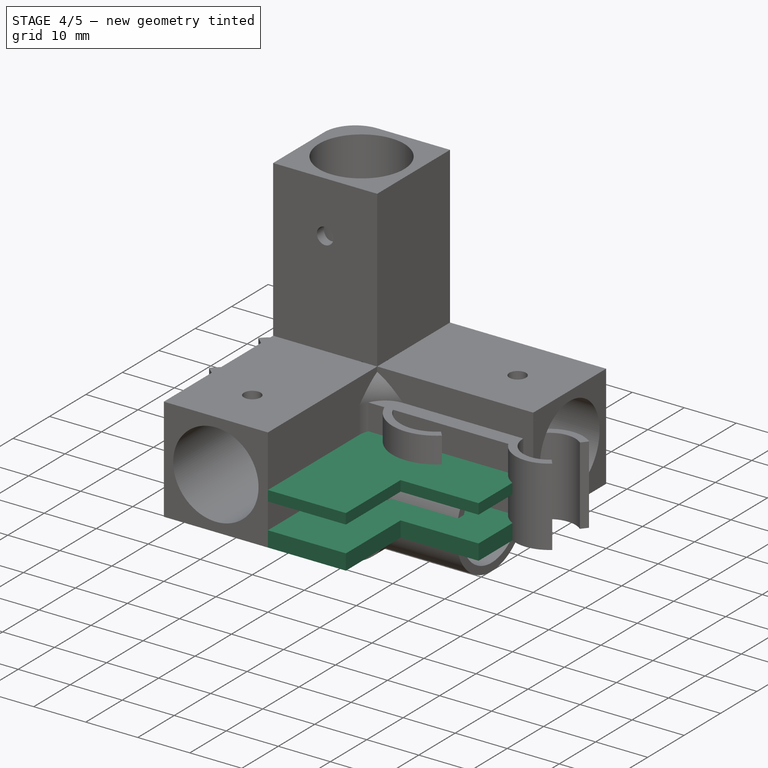
[diagram: stage 4 of 5 — iso view after this stage's code; geometry added in this stage tinted green]
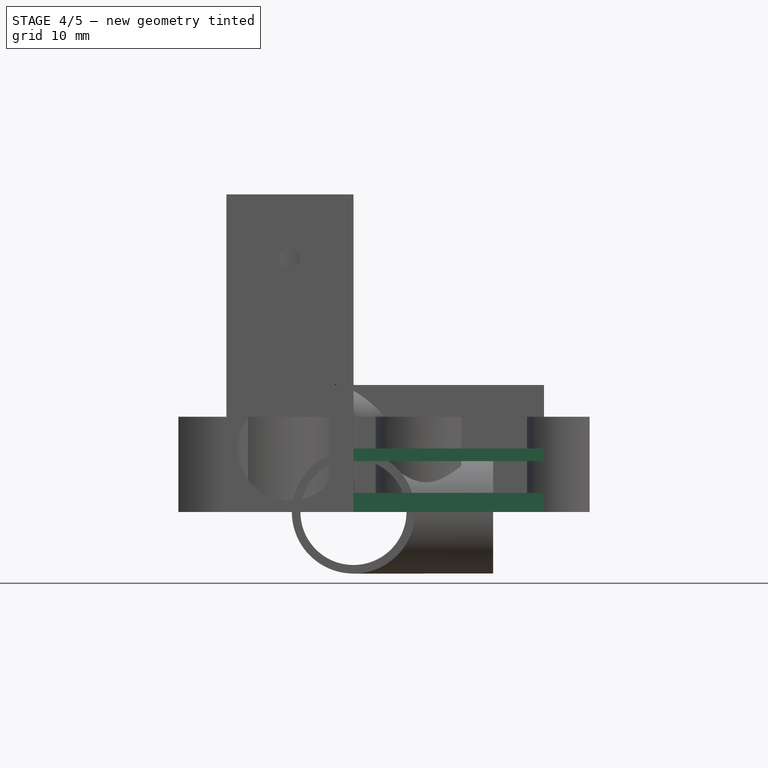
[diagram: stage 4 of 5 — front view after this stage's code; geometry added in this stage tinted green]
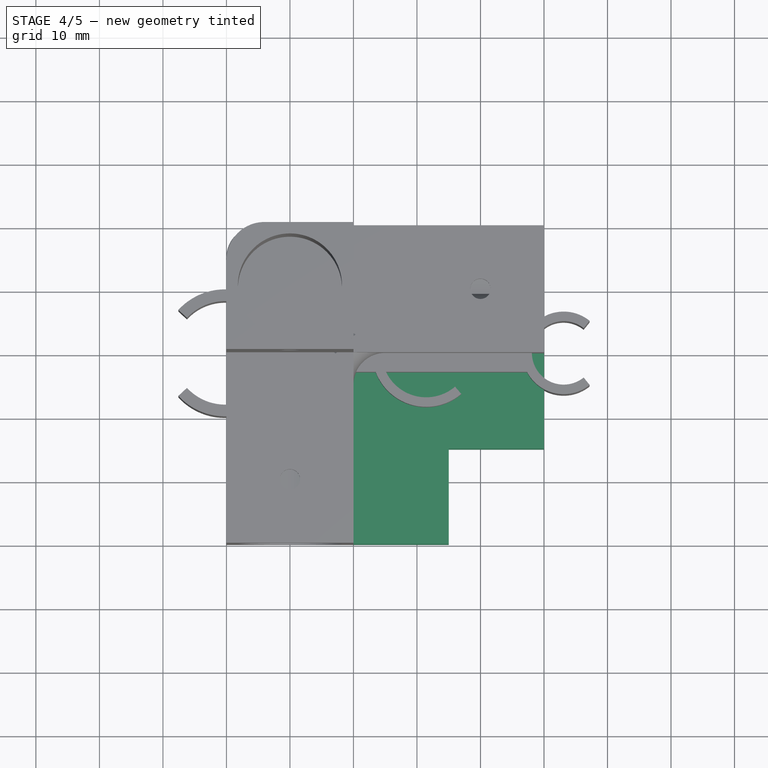
[diagram: stage 4 of 5 — top view after this stage's code; geometry added in this stage tinted green]
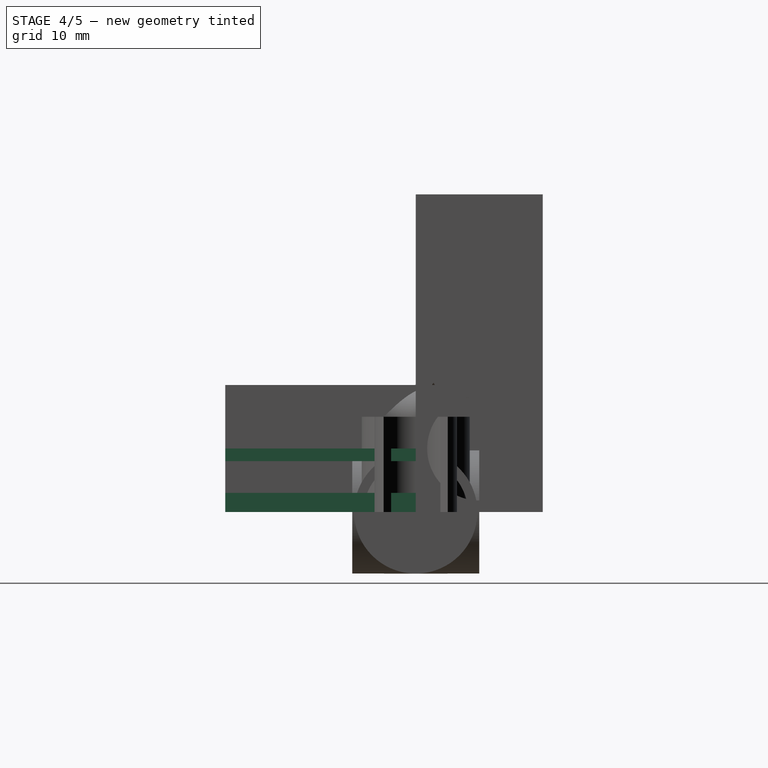
[diagram: stage 4 of 5 — right view after this stage's code; geometry added in this stage tinted green]
FEATURE [Spreadsheet::Sheet] Spreadsheet
  cells = A1='RohrAußen; B1(rohr_aussen)=16.4; A2='Bohrung; B2(bohrung)=3.2; A3='RohrInnen; B3(rohr_innen)=12.9; A4='Mutter; B4(mutter)=5.5
FEATURE [Sketcher::SketchObject] Sketch002
  AttachmentOffset = pos=(0,0,30) rot=(0,0,1;0rad)
  FullyConstrained = true
  MapMode = 5
  Placement = pos=(30,-6.7e-15,6.7e-15) rot=(0.57735,0.57735,0.57735;2.0944rad)
  Support = -> [YZ_Plane001]
  expr: Constraints[0] = Spreadsheet.rohr_aussen
  sketch-geometry (1):
    g0: Circle CenterX=10 CenterY=10 CenterZ=0 NormalX=0 NormalY=0 NormalZ=1 AngleXU=0 Radius=8.2
  constraints (3):
    c: Diameter(g0) = 16.4
    c: DistanceY(g-1,g0) = 10
    c: DistanceX(g-1,g0) = 10
FEATURE [PartDesign::Pocket] Pocket001
  BaseFeature = -> Pocket
  Direction = (-1,2e-16,-3e-16)
  Length = 30
  Length2 = 5
  Profile = -> Sketch002
  ReferenceAxis = -> Sketch002 [N_Axis]
  Type = 0
FEATURE [Sketcher::SketchObject] Sketch003
  AttachmentOffset = pos=(0,0,20) rot=(0,0,1;0rad)
  FullyConstrained = true
  MapMode = 5
  Placement = pos=(0,0,20) rot=(0,0,1;0rad)
  Support = -> [XY_Plane001]
  sketch-geometry (4):
    g0: LineSegment StartX=-20 StartY=20 StartZ=0 EndX=0 EndY=20 EndZ=0
    g1: LineSegment StartX=0 StartY=20 StartZ=0 EndX=0 EndY=0 EndZ=0
    g2: LineSegment StartX=0 StartY=0 StartZ=0 EndX=-20 EndY=0 EndZ=0
    g3: LineSegment StartX=-20 StartY=0 StartZ=0 EndX=-20 EndY=20 EndZ=0
  constraints (11):
    c: Coincident(g0,g1)
    c: Coincident(g1,g2)
    c: Coincident(g2,g3)
    c: Coincident(g3,g0)
    c: Horizontal(g0)
    c: Horizontal(g2)
    c: Vertical(g1)
    c: Vertical(g3)
    c: Coincident(g1,g-1)
    c: DistanceX(g0,g0) = 20
    c: DistanceY(g3,g3) = 20
FEATURE [PartDesign::Pad] Pad001
  BaseFeature = -> Pocket001
  Direction = (0,0,1)
  Length = 30
  Length2 = 10
  Profile = -> Sketch003
  ReferenceAxis = -> Sketch003 [N_Axis]
  Type = 0
FEATURE [Sketcher::SketchObject] Sketch004
  AttachmentOffset = pos=(0,0,50) rot=(0,0,1;0rad)
  FullyConstrained = true
  MapMode = 5
  Placement = pos=(0,0,50) rot=(0,0,1;0rad)
  Support = -> [XY_Plane001]
  expr: Constraints[0] = Spreadsheet.rohr_aussen
  sketch-geometry (1):
    g0: Circle CenterX=-10 CenterY=10 CenterZ=0 NormalX=0 NormalY=0 NormalZ=1 AngleXU=0 Radius=8.2
  constraints (3):
    c: Diameter(g0) = 16.4
    c: DistanceX(g0,g-1) = 10
    c: DistanceY(g-1,g0) = 10
FEATURE [PartDesign::Pocket] Pocket002
  BaseFeature = -> Pad001
  Direction = (0,0,-1)
  Length = 30
  Length2 = 5
  Profile = -> Sketch004
  ReferenceAxis = -> Sketch004 [N_Axis]
  Type = 0
FEATURE [Sketcher::SketchObject] Sketch005
  FullyConstrained = true
  MapMode = 5
  Support = -> [XY_Plane001]
  sketch-geometry (6):
    g0: LineSegment StartX=0 StartY=0 StartZ=0 EndX=30 EndY=0 EndZ=0
    g1: LineSegment StartX=30 StartY=0 StartZ=0 EndX=30 EndY=-15 EndZ=0
    g2: LineSegment StartX=30 StartY=-15 StartZ=0 EndX=15 EndY=-15 EndZ=0
    g3: LineSegment StartX=15 StartY=-15 StartZ=0 EndX=15 EndY=-30 EndZ=0
    g4: LineSegment StartX=15 StartY=-30 StartZ=0 EndX=0 EndY=-30 EndZ=0
    g5: LineSegment StartX=0 StartY=-30 StartZ=0 EndX=0 EndY=0 EndZ=0
  constraints (17):
    c: Coincident(g-1,g0)
    c: PointOnObject(g0,g-1)
    c: Coincident(g0,g1)
    c: Vertical(g1)
    c: Coincident(g1,g2)
    c: Horizontal(g2)
    c: Coincident(g2,g3)
    c: Vertical(g3)
    c: Coincident(g3,g4)
    c: PointOnObject(g4,g-2)
    c: Horizontal(g4)
    c: Coincident(g4,g5)
    c: Coincident(g5,g0)
    c: DistanceX(g0,g0) = 30
    c: DistanceX(g4,g4) = 15
    c: DistanceY(g1,g1) = 15
    c: DistanceY(g5,g5) = 30
FEATURE [PartDesign::Pad] Pad002
  BaseFeature = -> Pocket002
  Direction = (0,0,1)
  Length = 3
  Length2 = 10
  Profile = -> Sketch005
  ReferenceAxis = -> Sketch005 [N_Axis]
  Type = 0
FEATURE [Sketcher::SketchObject] Sketch006
  AttachmentOffset = pos=(0,0,20) rot=(0,0,1;0rad)
  FullyConstrained = true
  MapMode = 5
  Placement = pos=(0,0,20) rot=(0,0,1;0rad)
  Support = -> [XY_Plane001]
  expr: Constraints[0] = Spreadsheet.bohrung
  expr: Constraints[1] = Spreadsheet.bohrung
  sketch-geometry (2):
    g0: Circle CenterX=20 CenterY=10 CenterZ=0 NormalX=0 NormalY=0 NormalZ=1 AngleXU=0 Radius=1.6
    g1: Circle CenterX=-10 CenterY=-20 CenterZ=0 NormalX=0 NormalY=0 NormalZ=1 AngleXU=0 Radius=1.6
  constraints (6):
    c: Diameter(g1) = 3.2
    c: Diameter(g0) = 3.2
    c: DistanceY(g1,g-1) = 20
    c: DistanceX(g1,g-1) = 10
    c: DistanceY(g-1,g0) = 10
    c: DistanceX(g-1,g0) = 20
FEATURE [PartDesign::Pocket] Pocket003
  BaseFeature = -> Pad002
  Direction = (0,0,-1)
  Length = 5
  Length2 = 5
  Profile = -> Sketch006
  ReferenceAxis = -> Sketch006 [N_Axis]
  Type = 0
FEATURE [Sketcher::SketchObject] Sketch007
  FullyConstrained = true
  MapMode = 5
  Placement = pos=(0,0,0) rot=(1,0,0;1.5708rad)
  Support = -> [XZ_Plane001]
  expr: Constraints[0] = Spreadsheet.bohrung
  sketch-geometry (1):
    g0: Circle CenterX=-10 CenterY=40 CenterZ=0 NormalX=0 NormalY=0 NormalZ=1 AngleXU=0 Radius=1.6
  constraints (3):
    c: Diameter(g0) = 3.2
    c: DistanceX(g0,g-1) = 10
    c: DistanceY(g-1,g0) = 40
FEATURE [PartDesign::Pocket] Pocket004
  BaseFeature = -> Pocket003
  Direction = (0,1,2e-16)
  Length = 5
  Length2 = 5
  Profile = -> Sketch007
  ReferenceAxis = -> Sketch007 [N_Axis]
  Type = 0
FEATURE [Sketcher::SketchObject] Sketch008
  AttachmentOffset = pos=(0,0,8) rot=(0,0,1;0rad)
  FullyConstrained = true
  MapMode = 5
  Placement = pos=(0,0,8) rot=(0,0,1;0rad)
  Support = -> [XY_Plane001]
  sketch-geometry (6):
    g0: LineSegment StartX=0 StartY=0 StartZ=0 EndX=30 EndY=0 EndZ=0
    g1: LineSegment StartX=30 StartY=0 StartZ=0 EndX=30 EndY=-15 EndZ=0
    g2: LineSegment StartX=30 StartY=-15 StartZ=0 EndX=15 EndY=-15 EndZ=0
    g3: LineSegment StartX=15 StartY=-15 StartZ=0 EndX=15 EndY=-30 EndZ=0
    g4: LineSegment StartX=15 StartY=-30 StartZ=0 EndX=0 EndY=-30 EndZ=0
    g5: LineSegment StartX=0 StartY=-30 StartZ=0 EndX=0 EndY=0 EndZ=0
  constraints (17):
    c: Coincident(g-1,g0)
    c: PointOnObject(g0,g-1)
    c: Coincident(g0,g1)
    c: Vertical(g1)
    c: Coincident(g1,g2)
    c: Horizontal(g2)
    c: Coincident(g2,g3)
    c: Vertical(g3)
    c: Coincident(g3,g4)
    c: PointOnObject(g4,g-2)
    c: Horizontal(g4)
    c: Coincident(g4,g5)
    c: Coincident(g5,g0)
    c: DistanceX(g0,g0) = 30
    c: DistanceY(g1,g1) = 15
    c: DistanceX(g4,g4) = 15
    c: DistanceY(g5,g5) = 30
FEATURE [PartDesign::Pad] Pad003
  BaseFeature = -> Pocket004
  Direction = (0,0,1)
  Length = 2
  Length2 = 10
  Profile = -> Sketch008
  ReferenceAxis = -> Sketch008 [N_Axis]
  Type = 0
FEATURE [Sketcher::SketchObject] Sketch013
  AttachmentOffset = pos=(0,0,-30) rot=(0,0,1;0rad)
  FullyConstrained = false
  MapMode = 5
  Placement = pos=(-30,6.7e-15,-6.7e-15) rot=(0.57735,0.57735,0.57735;2.0944rad)
  Support = -> [YZ_Plane]
  expr: Constraints[13] = Spreadsheet.rohr_innen
  sketch-geometry (8):
    g0: LineSegment StartX=-20 StartY=8 StartZ=0 EndX=-14 EndY=8 EndZ=0
    g1: LineSegment StartX=-14 StartY=8 StartZ=0 EndX=-15.1394 EndY=3.55 EndZ=0
    g2: LineSegment StartX=-15.1394 StartY=3.55 StartZ=0 EndX=-20 EndY=8 EndZ=0
    g3: LineSegment StartX=-20 StartY=16.45 StartZ=0 EndX=-20 EndY=3.55 EndZ=0
    g4: LineSegment StartX=-20 StartY=3.55 StartZ=0 EndX=0 EndY=3.55 EndZ=0
    g5: LineSegment StartX=-4e-16 StartY=3.55 StartZ=0 EndX=-4e-16 EndY=16.45 EndZ=0
    g6: LineSegment StartX=-4e-16 StartY=16.45 StartZ=0 EndX=-20 EndY=16.45 EndZ=0
    g7: GeomPoint X=-10 Y=10 Z=0
  constraints (21):
    c: Horizontal(g0)
    c: Coincident(g0,g1)
    c: Coincident(g1,g2)
    c: Coincident(g2,g0)
    c: Coincident(g3,g4)
    c: Coincident(g4,g5)
    c: Coincident(g5,g6)
    c: Coincident(g6,g3)
    c: Horizontal(g4)
    c: Horizontal(g6)
    c: Vertical(g3)
    c: Vertical(g5)
    c: Symmetric(g4,g3,g7)
    c: DistanceY(g5,g5) = 12.9
    c: DistanceY(g-1,g7) = 10
    c: DistanceX(g6,g6) = 20
    c: DistanceX(g7,g-1) = 10
    c: PointOnObject(g1,g4)
    c: PointOnObject(g0,g3)
    c: DistanceX(g0,g-1) = 14
    c: DistanceY(g-1,g0) = 8
FEATURE [PartDesign::Body] Body001  label="Inlay"
  Group = -> [Sketch009,Pad004,Sketch010,Pocket005,Sketch011,Pocket006,Sketch012,Pocket007,Sketch013]
  Origin = -> Origin
  Tip = -> Pocket007
FEATURE [PartDesign::Fillet] Fillet
  Base = -> Pad003 [Edge1,Edge21]
  BaseFeature = -> Pad003
  Radius = 6
  SupportTransform = false
  UseAllEdges = false
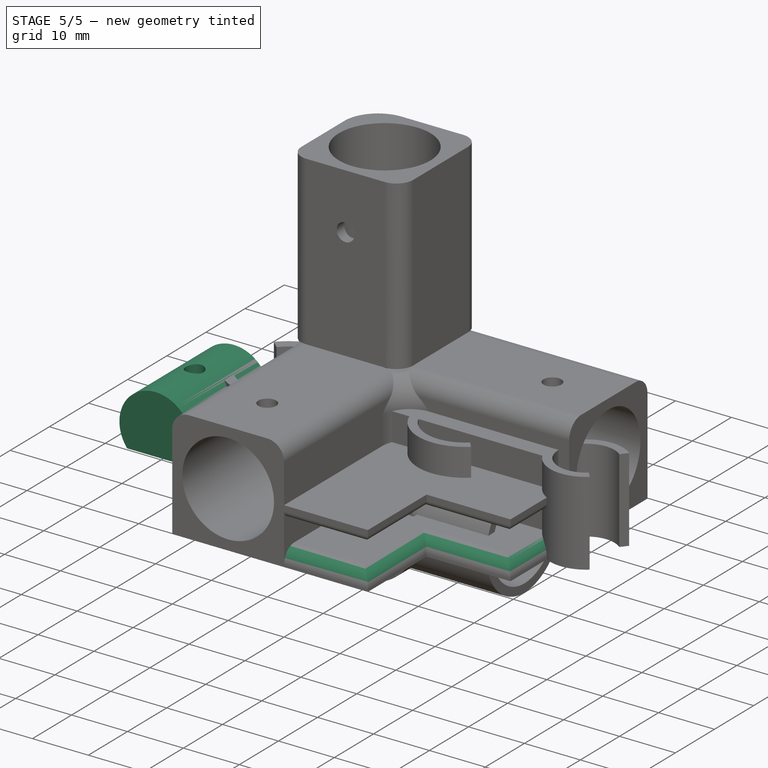
[diagram: stage 5 of 5 — iso view after this stage's code; geometry added in this stage tinted green]
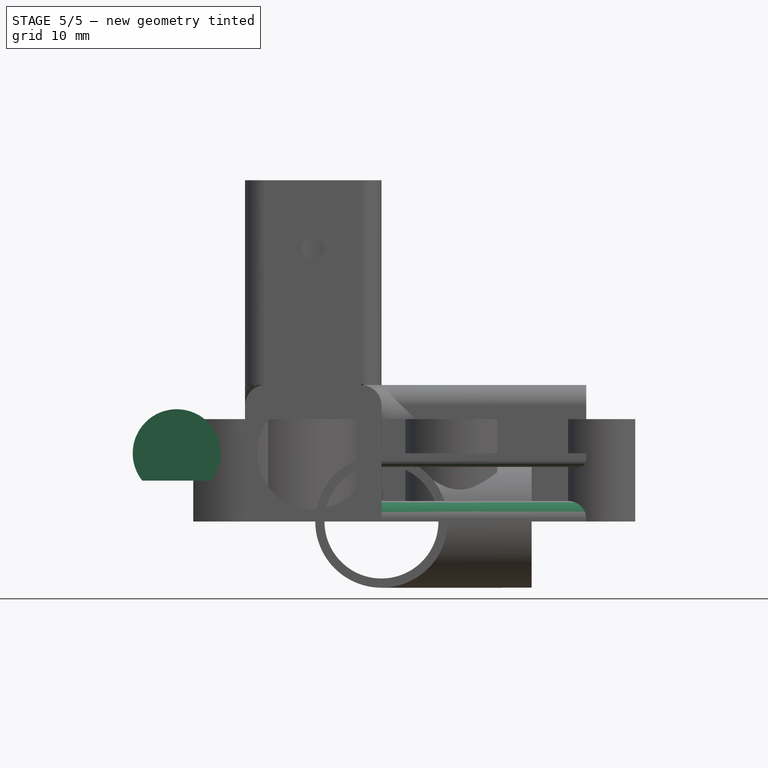
[diagram: stage 5 of 5 — front view after this stage's code; geometry added in this stage tinted green]
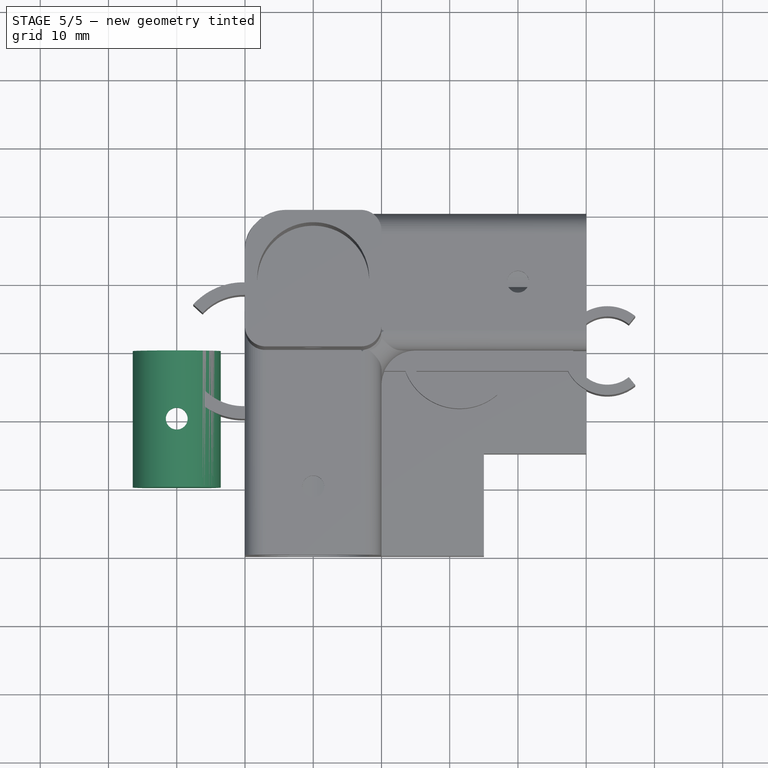
[diagram: stage 5 of 5 — top view after this stage's code; geometry added in this stage tinted green]
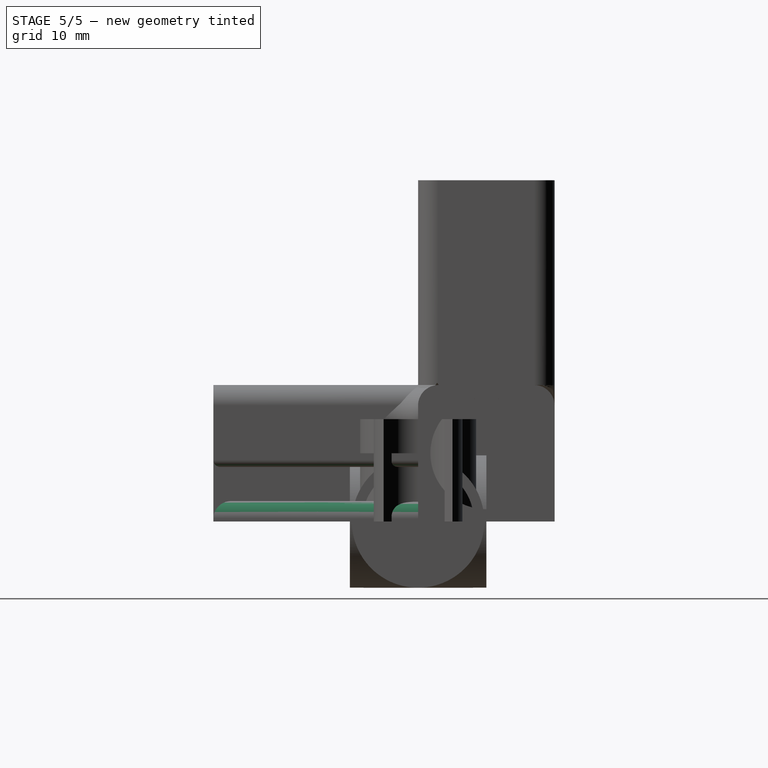
[diagram: stage 5 of 5 — right view after this stage's code; geometry added in this stage tinted green]
FEATURE [Sketcher::SketchObject] Sketch009
  FullyConstrained = true
  MapMode = 5
  Placement = pos=(0,0,0) rot=(1,0,0;1.5708rad)
  Support = -> [XZ_Plane]
  expr: Constraints[0] = Spreadsheet.rohr_innen
  sketch-geometry (1):
    g0: Circle CenterX=-30 CenterY=10 CenterZ=0 NormalX=0 NormalY=0 NormalZ=1 AngleXU=0 Radius=6.45
  constraints (3):
    c: Diameter(g0) = 12.9
    c: DistanceX(g0,g-1) = 30
    c: DistanceY(g-1,g0) = 10
FEATURE [PartDesign::Pad] Pad004
  Direction = (0,-1,-2e-16)
  Length = 20
  Length2 = 10
  Placement = pos=(0,0,0) rot=(1,0,0;1.5708rad)
  Profile = -> Sketch009
  ReferenceAxis = -> Sketch009 [N_Axis]
  Type = 0
FEATURE [Sketcher::SketchObject] Sketch010
  FullyConstrained = true
  MapMode = 5
  Support = -> [XY_Plane]
  expr: Constraints[0] = Spreadsheet.bohrung
  sketch-geometry (1):
    g0: Circle CenterX=-30 CenterY=-10 CenterZ=0 NormalX=0 NormalY=0 NormalZ=1 AngleXU=0 Radius=1.6
  constraints (3):
    c: Diameter(g0) = 3.2
    c: DistanceY(g0,g-1) = 10
    c: DistanceX(g0,g-1) = 30
FEATURE [PartDesign::Pocket] Pocket005
  BaseFeature = -> Pad004
  Direction = (0,0,-1)
  Length = 20
  Length2 = 5
  Placement = pos=(0,0,0) rot=(1,0,0;1.5708rad)
  Profile = -> Sketch010
  ReferenceAxis = -> Sketch010 [N_Axis]
  Reversed = true
  Type = 0
FEATURE [Sketcher::SketchObject] Sketch011
  AttachmentOffset = pos=(0,0,14) rot=(0,0,1;0rad)
  FullyConstrained = true
  MapMode = 5
  Placement = pos=(0,0,14) rot=(0,0,1;0rad)
  Support = -> [XY_Plane]
  expr: Constraints[19] = Spreadsheet.mutter
  sketch-geometry (7):
    g0: LineSegment StartX=-27.25 StartY=-8.41229 StartZ=0 EndX=-30 EndY=-6.82457 EndZ=0
    g1: LineSegment StartX=-30 StartY=-6.82457 StartZ=0 EndX=-32.75 EndY=-8.41229 EndZ=0
    g2: LineSegment StartX=-32.75 StartY=-8.41229 StartZ=0 EndX=-32.75 EndY=-11.5877 EndZ=0
    g3: LineSegment StartX=-32.75 StartY=-11.5877 StartZ=0 EndX=-30 EndY=-13.1754 EndZ=0
    g4: LineSegment StartX=-30 StartY=-13.1754 StartZ=0 EndX=-27.25 EndY=-11.5877 EndZ=0
    g5: LineSegment StartX=-27.25 StartY=-11.5877 StartZ=0 EndX=-27.25 EndY=-8.41229 EndZ=0
    g6: Circle CenterX=-30 CenterY=-10 CenterZ=0 NormalX=0 NormalY=0 NormalZ=1 AngleXU=0 Radius=3.17543
  constraints (17):
    c: Coincident(g0,g1)
    c: Coincident(g1,g2)
    c: Coincident(g2,g3)
    c: Coincident(g3,g4)
    c: Coincident(g4,g5)
    c: Coincident(g5,g0)
    c: Equal(g0, g1-g5) x5
    c: PointOnObject(g0,g6)
    c: PointOnObject(g1,g6)
    c: PointOnObject(g2,g6)
    c: PointOnObject(g3,g6)
    c: PointOnObject(g4,g6)
    c: PointOnObject(g5,g6)
    c: DistanceY(g6,g-1) = 10
    c: DistanceX(g6,g-1) = 30
    c: DistanceX(g2,g4) = 5.5
    c: Parallel(g5,g-2)
FEATURE [PartDesign::Pocket] Pocket006
  BaseFeature = -> Pocket005
  Direction = (0,0,-1)
  Length = 10
  Length2 = 5
  Placement = pos=(0,0,0) rot=(1,0,0;1.5708rad)
  Profile = -> Sketch011
  ReferenceAxis = -> Sketch011 [N_Axis]
  Type = 0
FEATURE [Sketcher::SketchObject] Sketch012
  FullyConstrained = true
  MapMode = 5
  Placement = pos=(0,0,0) rot=(1,0,0;1.5708rad)
  Support = -> [XZ_Plane]
  sketch-geometry (4):
    g0: LineSegment StartX=-40.92 StartY=6 StartZ=0 EndX=-20.92 EndY=6 EndZ=0
    g1: LineSegment StartX=-20.92 StartY=6 StartZ=0 EndX=-20.92 EndY=0 EndZ=0
    g2: LineSegment StartX=-20.92 StartY=0 StartZ=0 EndX=-40.92 EndY=0 EndZ=0
    g3: LineSegment StartX=-40.92 StartY=0 StartZ=0 EndX=-40.92 EndY=6 EndZ=0
  constraints (12):
    c: Coincident(g0,g1)
    c: Coincident(g1,g2)
    c: Coincident(g2,g3)
    c: Coincident(g3,g0)
    c: Horizontal(g0)
    c: Horizontal(g2)
    c: Vertical(g1)
    c: Vertical(g3)
    c: PointOnObject(g1,g-1)
    c: DistanceY(g1,g1) = 6
    c: DistanceX(g0,g0) = 20
    c: DistanceX(g1,g-1) = 20.92
FEATURE [PartDesign::Pocket] Pocket007
  BaseFeature = -> Pocket006
  Direction = (0,1,2e-16)
  Length = 21
  Length2 = 5
  Placement = pos=(0,0,0) rot=(1,0,0;1.5708rad)
  Profile = -> Sketch012
  ReferenceAxis = -> Sketch012 [N_Axis]
  Reversed = true
  Type = 0
FEATURE [PartDesign::Fillet] Fillet001
  Base = -> Fillet [Edge63,Edge54,Edge24,Edge5,Edge28,Edge21,Edge61]
  BaseFeature = -> Fillet
  Radius = 3
  SupportTransform = false
  UseAllEdges = false
FEATURE [PartDesign::Fillet] Fillet002
  Base = -> Fillet001 [Edge81,Edge82,Edge79,Edge35]
  BaseFeature = -> Fillet001
  Radius = 2.6
  SupportTransform = false
  UseAllEdges = false
FEATURE [PartDesign::Fillet] Fillet003
  Base = -> Fillet002 [Edge45,Edge46,Edge47,Edge48]
  BaseFeature = -> Fillet002
  Radius = 1
  SupportTransform = false
  UseAllEdges = false
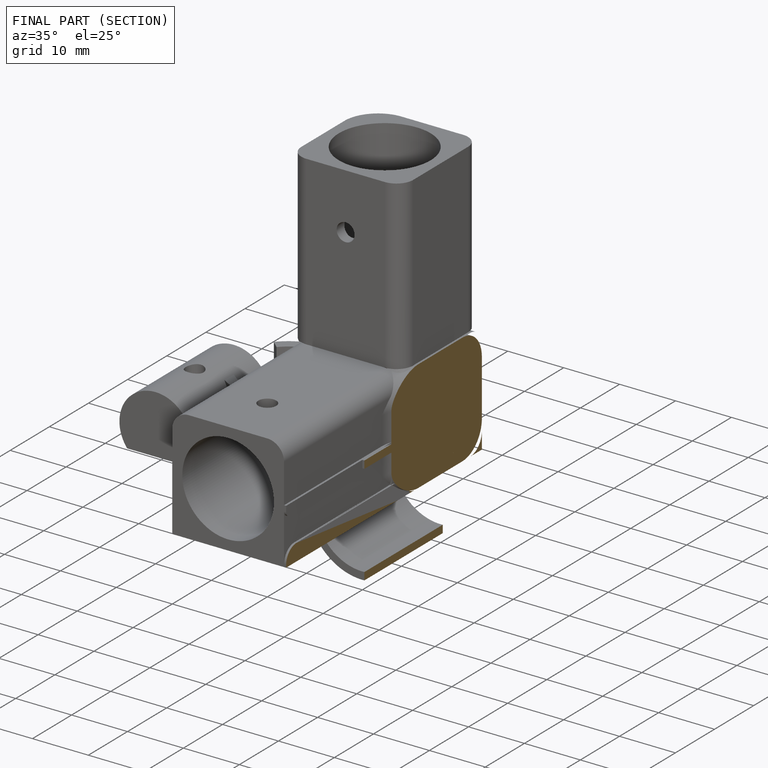
[diagram: finished part — half-section view (interior)]
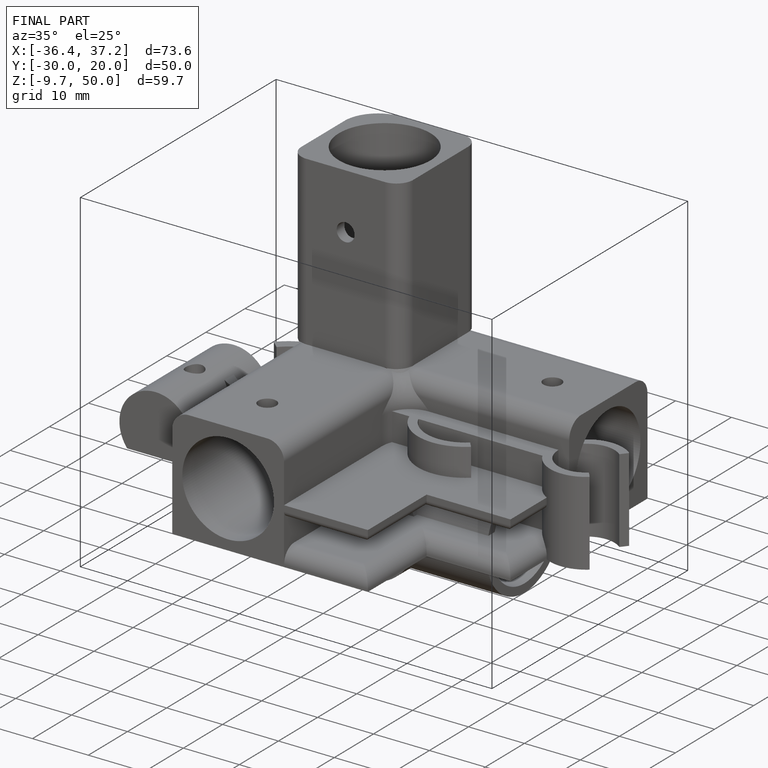
[diagram: finished part — iso view with bounding-box wireframe]
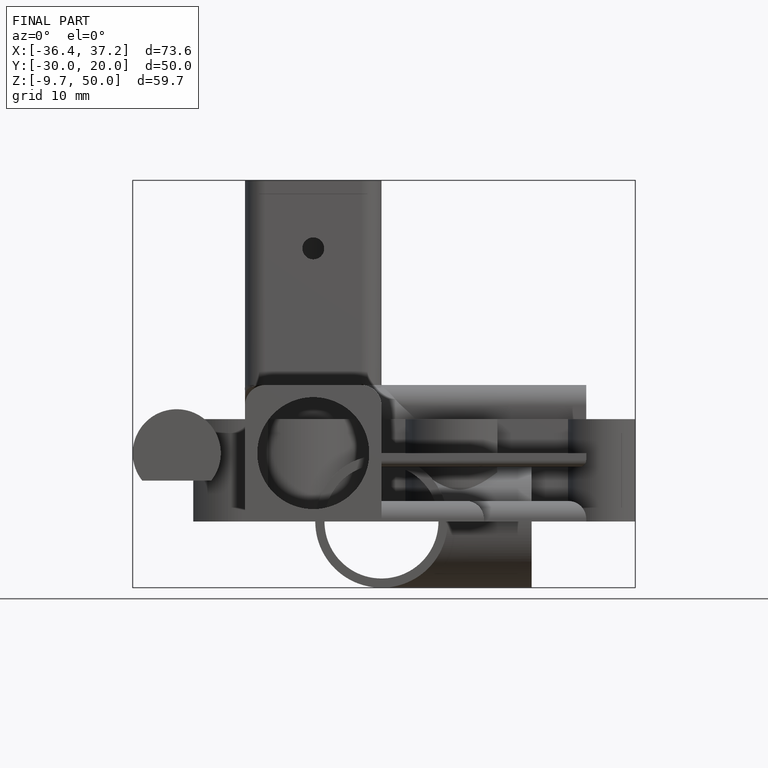
[diagram: finished part — front view with bounding-box wireframe]
